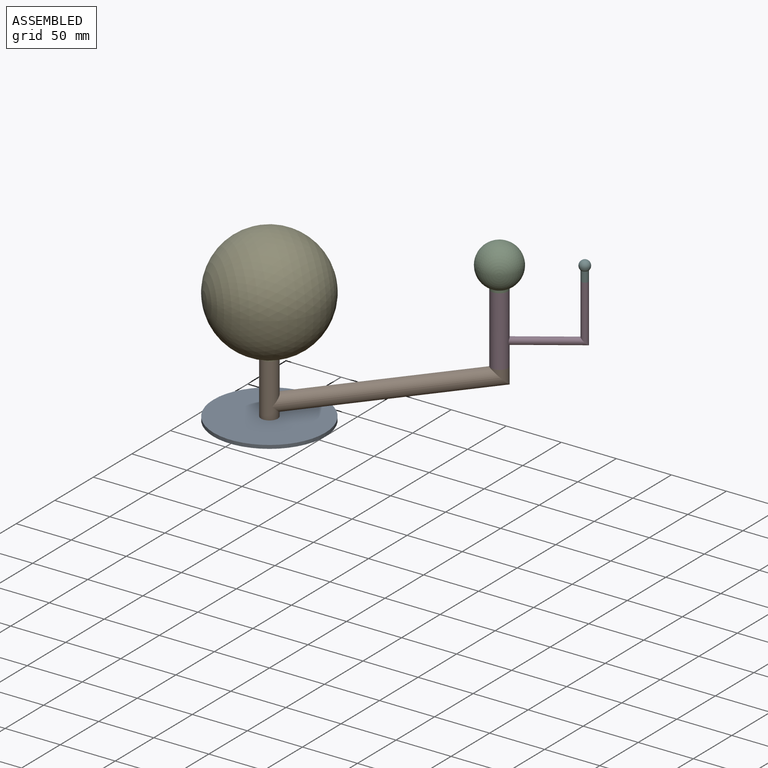
[diagram: assembled view]
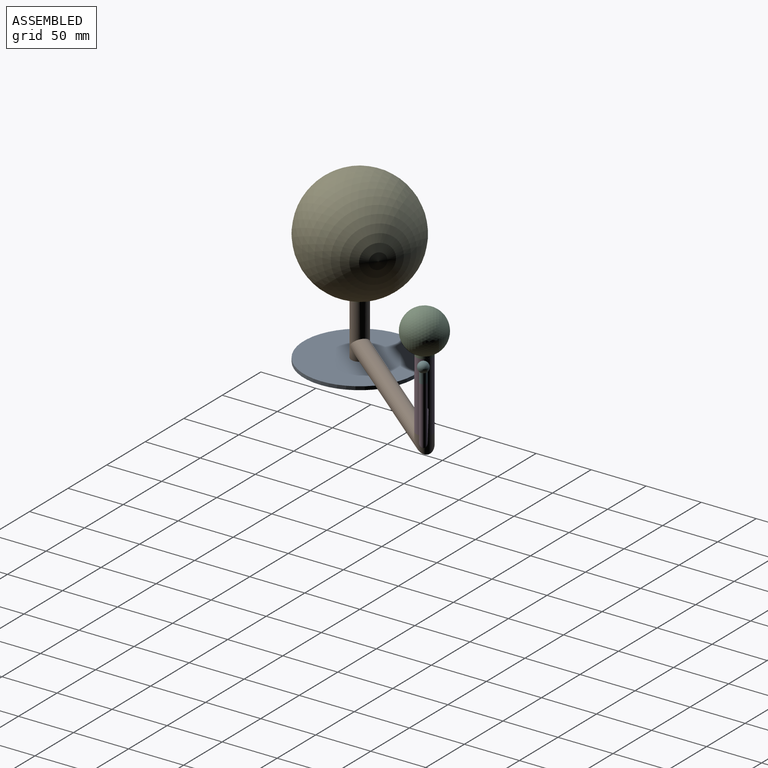
[diagram: assembled view, second angle]
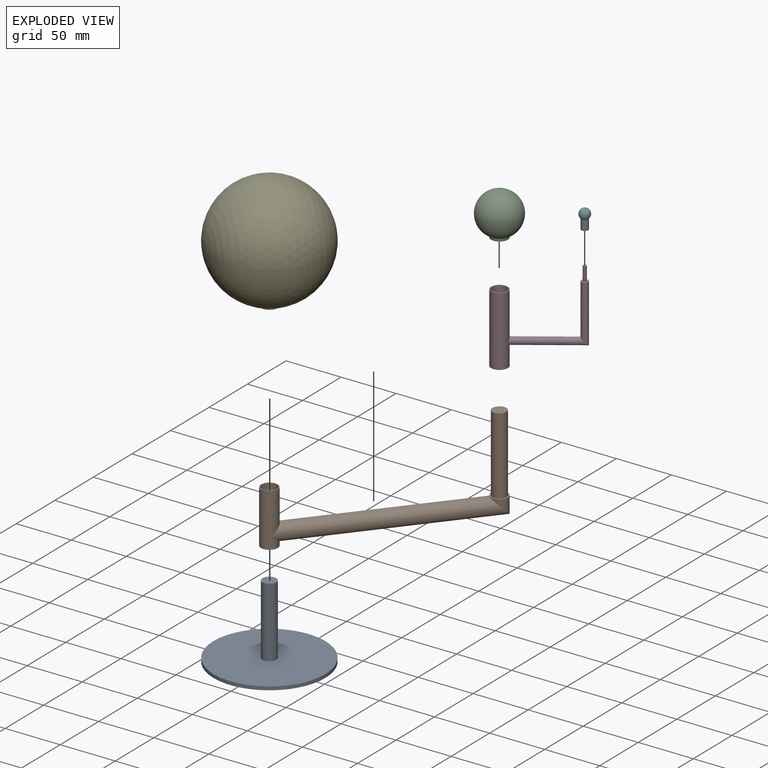
[diagram: exploded view]
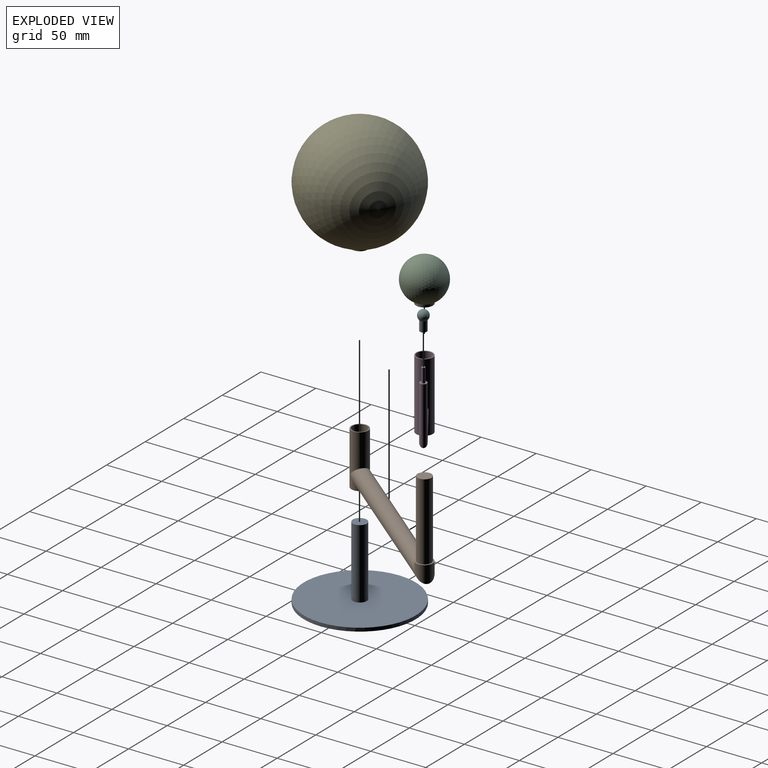
[diagram: exploded view, second angle]
ASSEMBLY  parts=6 mates=5
PART A: 5 faces, bbox 101.6x101.6x66.7 mm
  f0: cylinder r=6.35mm len=63.5mm, axis (0,0,-1), area 2533.5mm2, adj f2,f4
  f1: cylinder r=50.8mm len=101.6mm, axis (0,0,-1), area 1013.4mm2, adj f2,f3
  f2: plane 101.6x101.6mm, normal (0,0,1), area 7980.6mm2, adj f0,f1
  f3: plane 101.6x101.6mm, normal (0,0,-1), area 8107.3mm2, adj f1
  f4: plane 12.7x12.7mm, normal (0,0,1), area 126.7mm2, adj f0
PART B: 9 faces, bbox 193x15.2x88.9 mm
  f0: plane 15.24x15.24mm, normal (0,0,1), area 39.4mm2, adj f1,f2
  f1: cylinder r=7.62mm len=48.26mm, axis (0,0,-1), area 2078.3mm2, adj f0,f3,f4
  f2: cylinder r=6.75mm len=48.26mm, axis (0,0,-1), area 2045.8mm2, adj f0,f3
  f3: plane 15.24x15.24mm, normal (0,0,-1), area 39.4mm2, adj f1,f2
  f4: cylinder r=7.62mm len=185.42mm, axis (-1,0,0), area 8268mm2, adj f1,f5
  f5: cylinder r=7.62mm len=15.56mm, axis (0,0,1), area 367.6mm2, adj f4,f7
  f6: cylinder r=6.35mm len=69.85mm, axis (0,0,1), area 2786.9mm2, adj f7,f8
  f7: plane 15.24x15.24mm, normal (0,0,1), area 55.7mm2, adj f5,f6
  f8: plane 12.7x12.7mm, normal (0,0,1), area 126.7mm2, adj f6
PART C: 5 faces, bbox 38.1x38.1x38.7 mm
  f0: sphere r=19.05mm, area 4370mm2, adj f1
  f1: cylinder r=7.62mm len=15.24mm, axis (0,0,-1), area 106.5mm2, adj f0,f2
  f2: plane 15.24x15.24mm, normal (0,0,-1), area 39.4mm2, adj f1,f4
  f3: sphere r=17.46mm, area 3683.2mm2, adj f4
  f4: cylinder r=6.75mm len=13.49mm, axis (0,0,-1), area 151.7mm2, adj f2,f3
PART D: 9 faces, bbox 74.3x15.2x82.6 mm
  f0: cylinder r=7.62mm len=62.87mm, axis (0,0,-1), area 2977.5mm2, adj f2,f3,f4
  f1: cylinder r=6.75mm len=62.87mm, axis (0,0,-1), area 2665mm2, adj f2,f3
  f2: plane 15.24x15.24mm, normal (0,0,1), area 39.4mm2, adj f0,f1
  f3: plane 15.24x15.24mm, normal (0,0,-1), area 39.4mm2, adj f0,f1
  f4: cylinder r=3.17mm len=59.75mm, axis (1,0,0), area 1121.6mm2, adj f0,f5
  f5: cylinder r=3.17mm len=52.39mm, axis (0,0,1), area 981.7mm2, adj f4,f7
  f6: cylinder r=1.59mm len=12.7mm, axis (0,0,1), area 126.7mm2, adj f7,f8
  f7: plane 6.35x6.35mm, normal (0,0,1), area 23.8mm2, adj f5,f6
  f8: plane 3.18x3.18mm, normal (0,0,1), area 7.9mm2, adj f6
PART E: 5 faces, bbox 101.6x101.6x104.1 mm
  f0: cylinder r=7.62mm len=15.24mm, axis (0,0,-1), area 149.1mm2, adj f1,f2
  f1: sphere r=50.8mm, area 32245.8mm2, adj f0
  f2: plane 15.24x15.24mm, normal (0,0,-1), area 39.4mm2, adj f0,f4
  f3: sphere r=49.21mm, area 30290.4mm2, adj f4
  f4: cylinder r=6.75mm len=13.49mm, axis (0,0,-1), area 194.7mm2, adj f2,f3
PART F: 5 faces, bbox 9.5x9.5x17.5 mm
  f0: sphere r=3.97mm, area 178.1mm2, adj f3
  f1: plane 6.35x6.35mm, normal (0,0,-1), area 13.9mm2, adj f2,f3
  f2: cylinder r=3.17mm len=9.15mm, axis (0,0,-1), area 182.5mm2, adj f1,f4
  f3: cylinder r=2.38mm len=9.53mm, axis (0,0,-1), area 142.5mm2, adj f0,f1
  f4: sphere r=4.76mm, area 248.7mm2, adj f2
PLACE A t=(0,0,-3.18)mm
PLACE B rot(axis=(0,0,-1),129.3deg) t=(0,0,-3.17)mm
PLACE C rot(axis=(0,0,-1),55.7deg) t=(212.83,-9.29,-3.17)mm
PLACE D rot(axis=(0,0,1),34.3deg) t=(259.5,237.79,-3.18)mm
PLACE E rot(axis=(0,0,-1),129.3deg) t=(0,0,-3.17)mm
PLACE F rot(axis=(0,0,-1),55.7deg) t=(229.49,78.95,-3.18)mm
MATE fastened F.f2 <-> D.f5  axis (0,0,-1) through (165.08,173.37,88.9)mm
MATE revolute B.f1 <-> A.f0  axis (0,0,-1) through (0,0,0)mm
MATE fastened E.f0 <-> B.f1  axis (0,0,-1) through (0,0,48.26)mm
MATE revolute D.f0 <-> B.f5  axis (0,0,-1) through (112.62,137.58,19.05)mm
MATE fastened C.f1 <-> D.f0  axis (0,0,-1) through (112.62,137.58,81.91)mm
